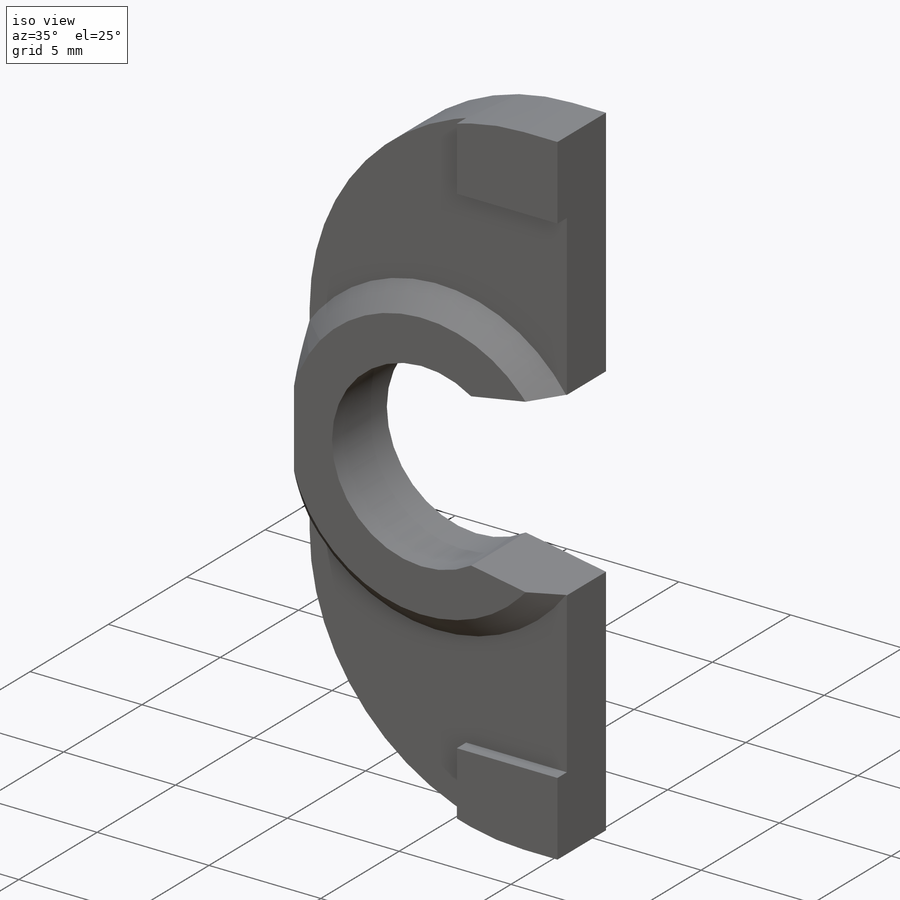
[diagram: iso view]
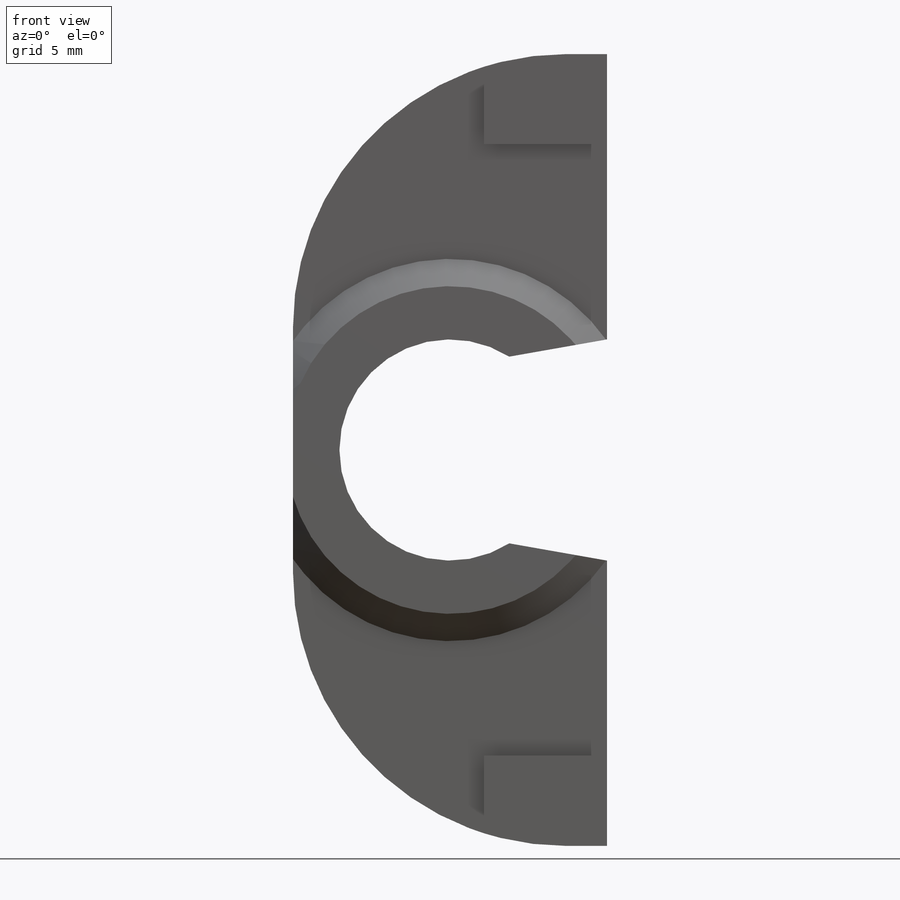
[diagram: front view]
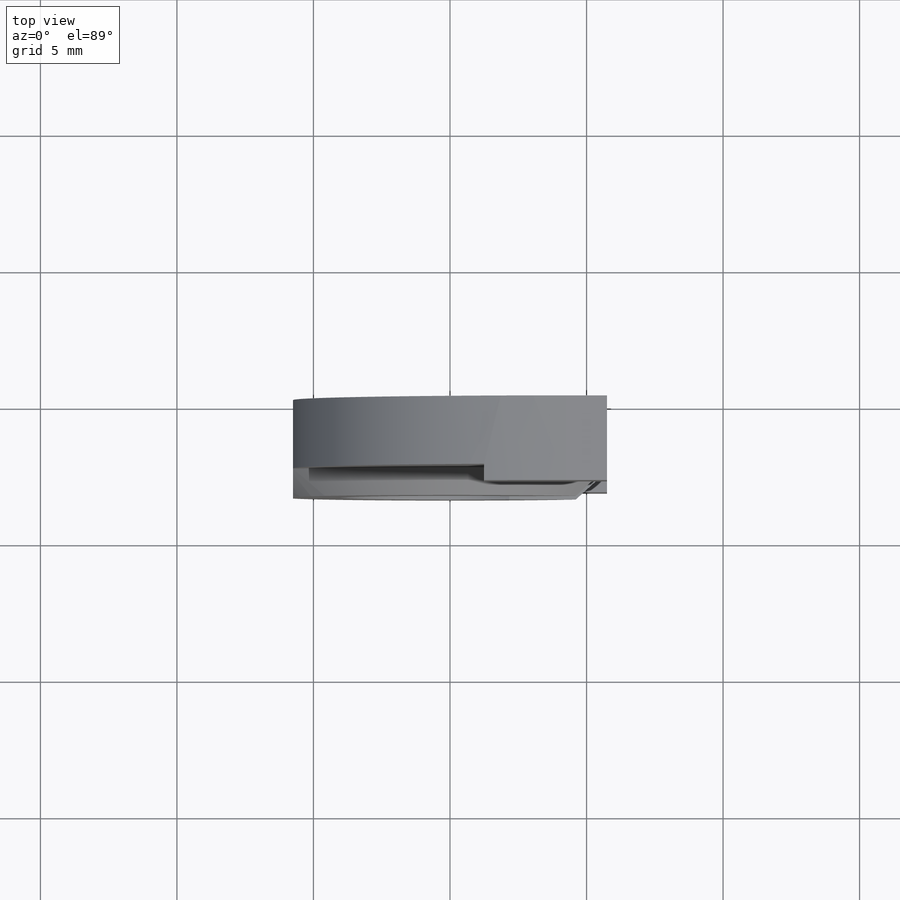
[diagram: top view]
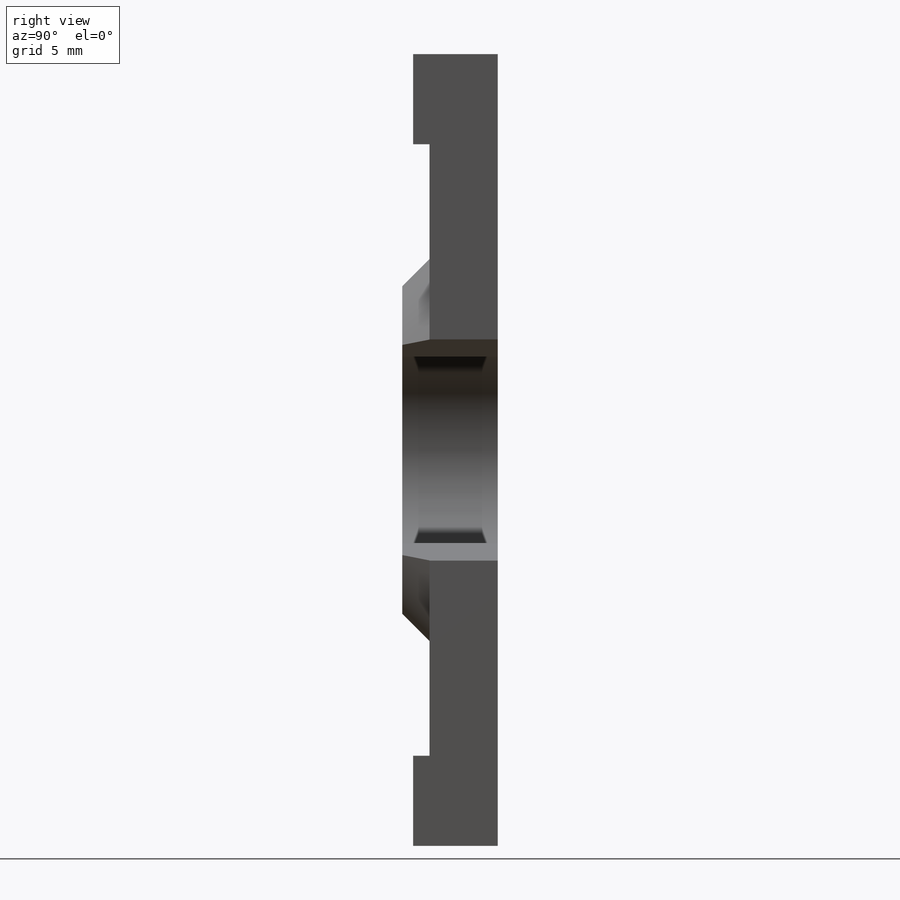
[diagram: right view]
SOLIDWORKS PART (.sldprt)
format: sldprt  version: not decoded by parser v0  size: 200,704 bytes
history: native  units: mm
features: sketch x3, extrude x3, material x1, mirror x1, chamfer x1 (+12 scaffold rows collapsed)
feature tree (21):
  scaffold x12  (default folders/planes/origin — collapsed)
  material  "Material <not specified>"
  sketch  "Sketch2"  dims[D3=8.1mm D4=10.0mm D1=11.5mm D2=29.0mm D5=170.0deg]
  extrude  "Boss-Extrude1"  Depth=2.5mm
  sketch  "Sketch3"  dims[D1=12.0mm]
  extrude  "Boss-Extrude2"  Depth=1mm
  sketch  "Sketch4"  dims[D2=4.5mm D3=3.3mm D1=0.0mm]
  extrude  "Boss-Extrude3"  Depth=0.6mm
  mirror  "Mirror1"
  chamfer  "Chamfer2"  Distance=1mm Angle=45deg
decode coverage: 7 of 8 modeling features carry decoded parameters
note: suppression state not decoded; provenance and decode notes live in map.json
